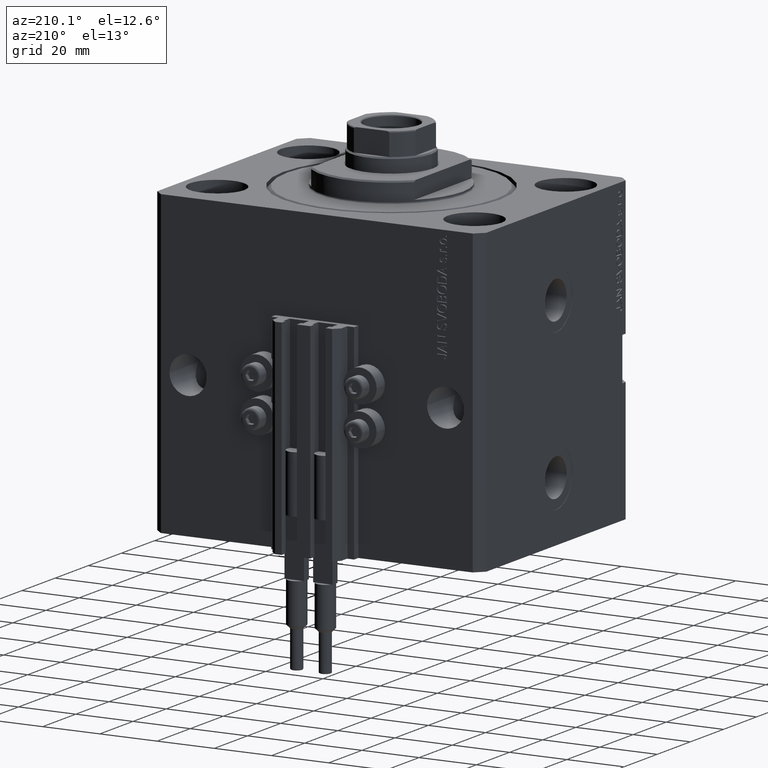
[diagram: clean part render]
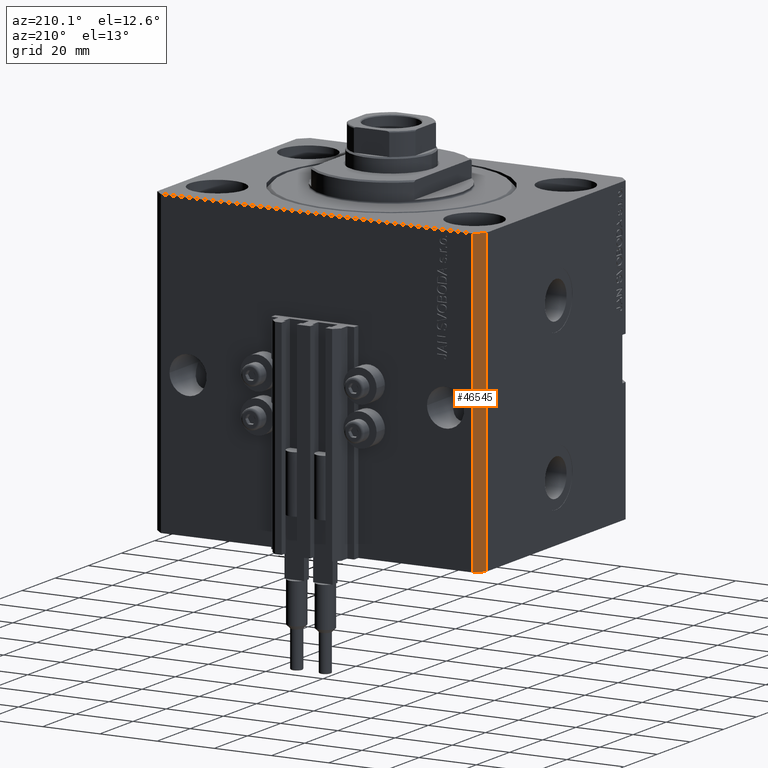
[diagram: same view with one face highlighted and labeled with its STEP entity id]
A machine part, auxiliary view. The second image highlights one B-rep face of the part: STEP entity #46545.
In plain terms, the highlighted planar face has unit normal (-0.7071, 0.7071, 0).
Its self-contained STEP definition (entity closure, byte-faithful):
#1411 = ORIENTED_EDGE ( 'NONE', *, *, #16716, .T. ) ;
#2118 = CARTESIAN_POINT ( 'NONE',  ( -57.49999999999998579, 42.00000000000000711, -105.0000000000000000 ) ) ;
#6482 = PLANE ( 'NONE',  #12154 ) ;
#6661 = VERTEX_POINT ( 'NONE', #48528 ) ;
#7377 = LINE ( 'NONE', #46089, #14833 ) ;
#10512 = CARTESIAN_POINT ( 'NONE',  ( -54.49999999999999289, 45.00000000000000000, -105.0000000000000000 ) ) ;
#12154 = AXIS2_PLACEMENT_3D ( 'NONE', #10512, #14059, #36835 ) ;
#12421 = EDGE_LOOP ( 'NONE', ( #29343, #19214, #35873, #1411 ) ) ;
#14059 = DIRECTION ( 'NONE',  ( -0.7071067811865466846, 0.7071067811865484609, 0.000000000000000000 ) ) ;
#14361 = VECTOR ( 'NONE', #50038, 1000.000000000000000 ) ;
#14833 = VECTOR ( 'NONE', #15975, 1000.000000000000000 ) ;
#15975 = DIRECTION ( 'NONE',  ( -0.7071067811865483499, -0.7071067811865466846, 0.000000000000000000 ) ) ;
#16201 = CARTESIAN_POINT ( 'NONE',  ( -54.49999999999999289, 45.00000000000000000, -105.0000000000000000 ) ) ;
#16716 = EDGE_CURVE ( 'NONE', #6661, #16772, #45118, .T. ) ;
#16772 = VERTEX_POINT ( 'NONE', #30892 ) ;
#18675 = LINE ( 'NONE', #37913, #14361 ) ;
#18958 = VERTEX_POINT ( 'NONE', #40483 ) ;
#19214 = ORIENTED_EDGE ( 'NONE', *, *, #43914, .F. ) ;
#20342 = CARTESIAN_POINT ( 'NONE',  ( -54.49999999999999289, 45.00000000000000000, 0.000000000000000000 ) ) ;
#24309 = VERTEX_POINT ( 'NONE', #16201 ) ;
#25584 = VECTOR ( 'NONE', #32960, 1000.000000000000000 ) ;
#27902 = EDGE_CURVE ( 'NONE', #24309, #6661, #7377, .T. ) ;
#29343 = ORIENTED_EDGE ( 'NONE', *, *, #46748, .F. ) ;
#30892 = CARTESIAN_POINT ( 'NONE',  ( -57.49999999999998579, 42.00000000000000711, 0.000000000000000000 ) ) ;
#32960 = DIRECTION ( 'NONE',  ( 0.000000000000000000, 0.000000000000000000, 1.000000000000000000 ) ) ;
#33278 = FACE_OUTER_BOUND ( 'NONE', #12421, .T. ) ;
#35765 = DIRECTION ( 'NONE',  ( -0.7071067811865483499, -0.7071067811865466846, 0.000000000000000000 ) ) ;
#35873 = ORIENTED_EDGE ( 'NONE', *, *, #27902, .T. ) ;
#36835 = DIRECTION ( 'NONE',  ( -0.7071067811865483499, -0.7071067811865465735, 0.000000000000000000 ) ) ;
#37913 = CARTESIAN_POINT ( 'NONE',  ( -54.49999999999999289, 45.00000000000000000, -105.0000000000000000 ) ) ;
#40483 = CARTESIAN_POINT ( 'NONE',  ( -54.49999999999999289, 45.00000000000000000, 0.000000000000000000 ) ) ;
#43914 = EDGE_CURVE ( 'NONE', #24309, #18958, #18675, .T. ) ;
#45118 = LINE ( 'NONE', #2118, #25584 ) ;
#46089 = CARTESIAN_POINT ( 'NONE',  ( -54.49999999999999289, 45.00000000000000000, -105.0000000000000000 ) ) ;
#46545 = ADVANCED_FACE ( 'NONE', ( #33278 ), #6482, .T. ) ;
#46748 = EDGE_CURVE ( 'NONE', #18958, #16772, #47412, .T. ) ;
#47412 = LINE ( 'NONE', #20342, #47694 ) ;
#47694 = VECTOR ( 'NONE', #35765, 1000.000000000000000 ) ;
#48528 = CARTESIAN_POINT ( 'NONE',  ( -57.49999999999998579, 42.00000000000000711, -105.0000000000000000 ) ) ;
#50038 = DIRECTION ( 'NONE',  ( 0.000000000000000000, 0.000000000000000000, 1.000000000000000000 ) ) ;